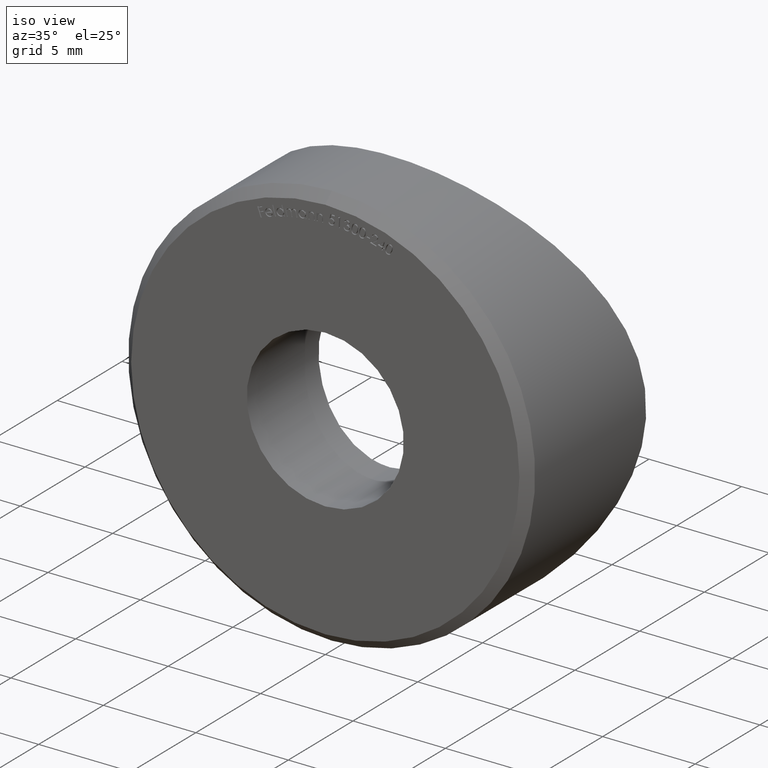
[diagram: clean part render]
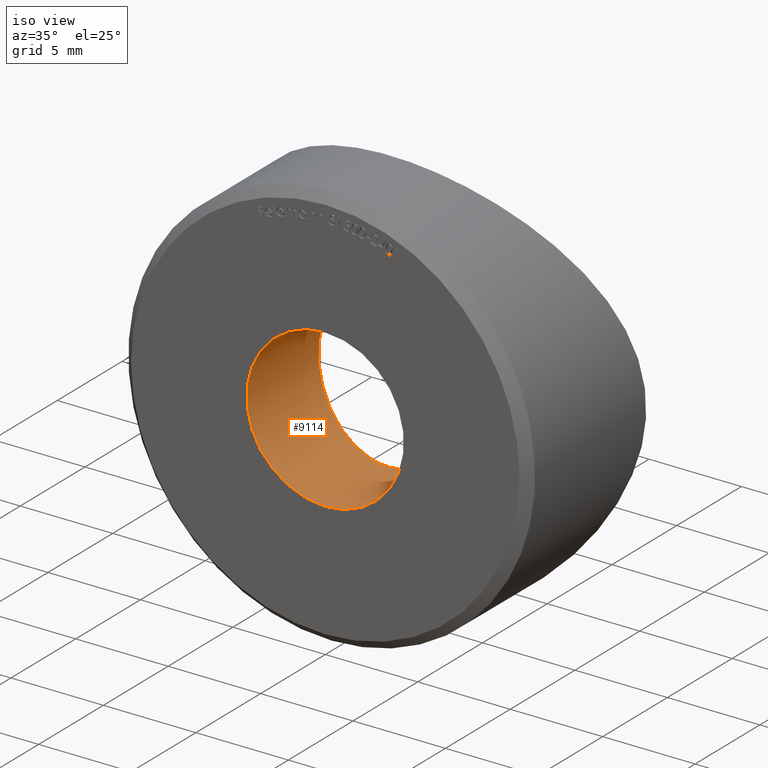
[diagram: same view with one face highlighted and labeled with its STEP entity id]
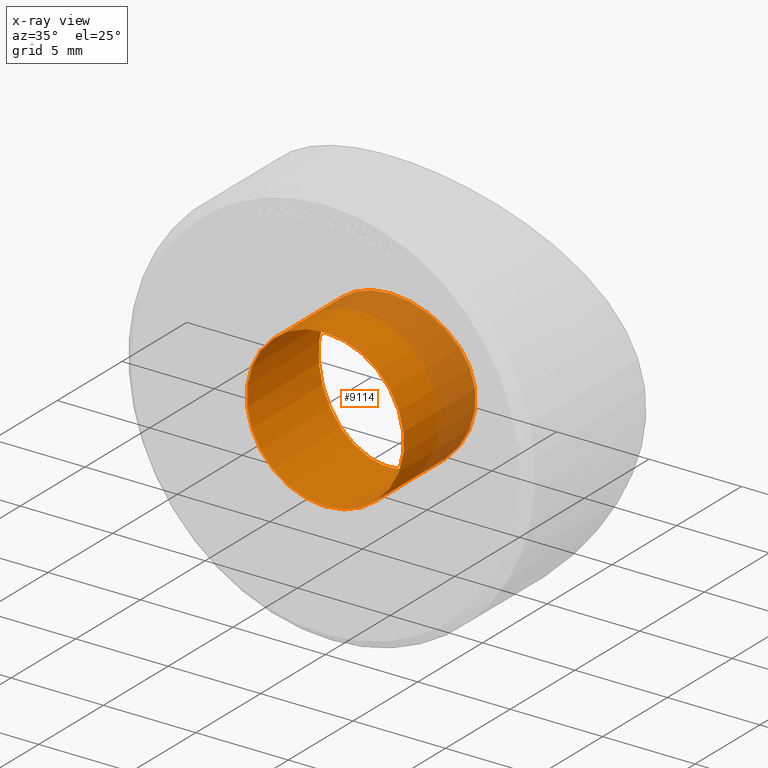
[diagram: x-ray of the same camera — body ghosted, the highlighted face saturated]
A machine part, iso view. The second image highlights one B-rep face of the part: STEP entity #9114.
The next image is the same camera in x-ray: the body ghosted, the highlighted face saturated — about 25% of this face is hidden behind the body in this view.
In plain terms, the highlighted cylindrical surface (bore or boss wall) has radius 4.25 mm, axis along (-0, -1, -0).
Its self-contained STEP definition (entity closure, byte-faithful):
#36 = CARTESIAN_POINT ( 'NONE',  ( -3.202099156066434471, 5.305868416663313880, -2.808045869680457773 ) ) ;
#96 = ORIENTED_EDGE ( 'NONE', *, *, #11983, .T. ) ;
#692 = CARTESIAN_POINT ( 'NONE',  ( 0.2819964863321830495, 5.000000000000001776, -4.250000000000001776 ) ) ;
#736 = CARTESIAN_POINT ( 'NONE',  ( 0.5590585511364187798, 5.007069249662907673, -4.222213537680882034 ) ) ;
#787 = CARTESIAN_POINT ( 'NONE',  ( 4.113363743329854216, 5.509684845895088223, 1.104640042574015935 ) ) ;
#805 = DIRECTION ( 'NONE',  ( 0.000000000000000000, -1.000000000000000000, 0.000000000000000000 ) ) ;
#830 = CARTESIAN_POINT ( 'NONE',  ( 3.376415596996001245, 5.340985582568876566, -2.596208720344776566 ) ) ;
#1052 = CARTESIAN_POINT ( 'NONE',  ( -2.132406354254060776, 5.133851616420283648, 3.686781688357382958 ) ) ;
#1093 = CARTESIAN_POINT ( 'NONE',  ( -4.249854645195545011, 5.544748222824101624, 0.2825546898945247021 ) ) ;
#1711 = CARTESIAN_POINT ( 'NONE',  ( 2.710505431213761085E-17, 5.000000000000000888, -4.250000000000000000 ) ) ;
#1776 = CARTESIAN_POINT ( 'NONE',  ( 0.000000000000000000, 5.000000000000000888, -4.250000000000000000 ) ) ;
#1797 = CARTESIAN_POINT ( 'NONE',  ( 3.686326990291119987, 5.407428811919006151, 2.133017918529832357 ) ) ;
#1843 = CARTESIAN_POINT ( 'NONE',  ( 4.030673782415022721, 5.488823833255817242, -1.375746474635703986 ) ) ;
#2081 = CARTESIAN_POINT ( 'NONE',  ( -4.250144221301368930, 5.544823701642275893, -0.2781649802007720162 ) ) ;
#2128 = CARTESIAN_POINT ( 'NONE',  ( -0.5598943242011187316, 5.007072636997521364, -4.222205587743669497 ) ) ;
#2156 = EDGE_LOOP ( 'NONE', ( #3646 ) ) ;
#2840 = CARTESIAN_POINT ( 'NONE',  ( 4.222551897898275008, 5.537558228515234937, -0.5576199131837077383 ) ) ;
#2933 = CARTESIAN_POINT ( 'NONE',  ( 2.136102750342999457, 5.134337833422313757, 3.684559433370321102 ) ) ;
#2975 = CARTESIAN_POINT ( 'NONE',  ( -1.883747374306436351, 5.103652316888144469, 3.819791992384478085 ) ) ;
#3102 = CARTESIAN_POINT ( 'NONE',  ( -1.371702607425717035, 5.053955916625676004, 4.032089655758223756 ) ) ;
#3127 = CARTESIAN_POINT ( 'NONE',  ( 0.000000000000000000, 0.000000000000000000, -4.250000000000000000 ) ) ;
#3646 = ORIENTED_EDGE ( 'NONE', *, *, #11384, .F. ) ;
#3756 = CARTESIAN_POINT ( 'NONE',  ( 4.250175355755280826, 5.544831816921088397, 0.2757379727460197993 ) ) ;
#3803 = CARTESIAN_POINT ( 'NONE',  ( 3.818350816521644653, 5.437973502901777501, -1.886585949457082245 ) ) ;
#3847 = CARTESIAN_POINT ( 'NONE',  ( 2.595389910111483900, 5.199467040311561483, 3.376812756513554614 ) ) ;
#3895 = CARTESIAN_POINT ( 'NONE',  ( 1.887181430685274108, 5.104032090535231880, 3.818137575137098061 ) ) ;
#3941 = CARTESIAN_POINT ( 'NONE',  ( 3.818794757457847577, 5.438071097091832229, 1.886082337270470699 ) ) ;
#4113 = CARTESIAN_POINT ( 'NONE',  ( -3.685052522565821054, 5.407141910777808924, 2.135217097874255288 ) ) ;
#4771 = CARTESIAN_POINT ( 'NONE',  ( 1.888501103381043489, 5.104171275860843515, -3.817535299979440744 ) ) ;
#4782 = FACE_OUTER_BOUND ( 'NONE', #12797, .T. ) ;
#4994 = CARTESIAN_POINT ( 'NONE',  ( -2.593735752357077651, 5.199194959748570710, 3.378172719713290473 ) ) ;
#5034 = CARTESIAN_POINT ( 'NONE',  ( -4.222815088679628737, 5.537628515245566874, -0.5548004495832316030 ) ) ;
#5564 = AXIS2_PLACEMENT_3D ( 'NONE', #9190, #6226, #9663 ) ;
#5906 = CARTESIAN_POINT ( 'NONE',  ( -0.2762136674625461086, 4.999970389481737776, 4.250117397005805486 ) ) ;
#5946 = CARTESIAN_POINT ( 'NONE',  ( -2.596800803165856042, 5.199660360310029539, -3.375912692660497871 ) ) ;
#6078 = CARTESIAN_POINT ( 'NONE',  ( -4.031977355670372631, 5.489143847044394064, -1.372104875753446862 ) ) ;
#6226 = DIRECTION ( 'NONE',  ( -0.000000000000000000, -1.000000000000000000, -0.000000000000000000 ) ) ;
#6828 = CARTESIAN_POINT ( 'NONE',  ( 4.222308652543642182, 5.537496505347000664, 0.5586596023103794773 ) ) ;
#6845 = CARTESIAN_POINT ( 'NONE',  ( 0.000000000000000000, 0.000000000000000000, 0.000000000000000000 ) ) ;
#6870 = CARTESIAN_POINT ( 'NONE',  ( 1.374256033223439033, 5.054157796278981429, 4.031258941093476267 ) ) ;
#6915 = CARTESIAN_POINT ( 'NONE',  ( 3.202292299650155272, 5.305882403607578901, 2.808077551392097249 ) ) ;
#7050 = CARTESIAN_POINT ( 'NONE',  ( -2.812333301363292737, 5.235171976391605142, -3.198334256070478165 ) ) ;
#7193 = B_SPLINE_CURVE_WITH_KNOTS ( 'NONE', 3,
 ( #1711, #692, #736, #12831, #7804, #4771, #8737, #12875, #11865, #8782, #830, #9808, #3803, #1843, #9939, #2840, #10847, #3756, #6828, #787, #7847, #3941, #1797, #8909, #6915, #9850, #3847, #2933, #3895, #6870, #8870, #7939, #10895, #5906, #12925, #9129, #3102, #2975, #1052, #4994, #11018, #12075, #8111, #4113, #8956, #8996, #12036, #12121, #1093, #2081, #5034, #13055, #6078, #11994, #8068, #7982, #36, #7050, #5946, #10105, #11108, #8153, #13010, #2128, #12968, #9985 ),
 .UNSPECIFIED., .T., .F.,
 ( 4, 2, 2, 2, 2, 2, 2, 2, 2, 2, 2, 2, 2, 2, 2, 2, 2, 2, 2, 2, 2, 2, 2, 2, 2, 2, 2, 2, 2, 2, 2, 2, 4 ),
 ( 0.000000000000000000, 0.0008337316715634521909, 0.001667463343126904382, 0.002501195014690356030, 0.003334926686253807896, 0.004168658357817258894, 0.005002390029380710326, 0.005836121700944162626, 0.006669853372507613190, 0.007503585044071064622, 0.008337316715634516054, 0.009171048387197969221, 0.01000478005876142065, 0.01083851173032487382, 0.01167224340188832699, 0.01250597507345177842, 0.01333970674501522985, 0.01417343841657868128, 0.01500717008814213271, 0.01584090175970558415, 0.01667463343126903558, 0.01750836510283248701, 0.01834209677439594191, 0.01917582844595939334, 0.02000956011752284477, 0.02084329178908629968, 0.02167702346064975111, 0.02251075513221320254, 0.02334448680377665397, 0.02417821847534010887, 0.02501195014690356030, 0.02584568181846701174, 0.02667941349003046317 ),
 .UNSPECIFIED. ) ;
#7292 = CIRCLE ( 'NONE', #9696, 4.250000000000000000 ) ;
#7303 = CYLINDRICAL_SURFACE ( 'NONE', #5564, 4.250000000000000000 ) ;
#7804 = CARTESIAN_POINT ( 'NONE',  ( 1.374338991408923460, 5.054155025353187725, -4.031278273792771927 ) ) ;
#7847 = CARTESIAN_POINT ( 'NONE',  ( 4.032773300443170506, 5.489335489628399678, 1.370123895778730505 ) ) ;
#7866 = DIRECTION ( 'NONE',  ( 0.000000000000000000, 0.000000000000000000, -1.000000000000000000 ) ) ;
#7939 = CARTESIAN_POINT ( 'NONE',  ( 0.5619438384984910551, 5.007143928881897743, 4.221922281909276542 ) ) ;
#7982 = CARTESIAN_POINT ( 'NONE',  ( -3.379281232852199945, 5.341576909470330925, -2.592423147604817402 ) ) ;
#8068 = CARTESIAN_POINT ( 'NONE',  ( -3.688936139207575238, 5.408001193666002848, -2.128837614237557574 ) ) ;
#8111 = CARTESIAN_POINT ( 'NONE',  ( -3.377744290594377752, 5.341273890947086933, 2.594148734456136918 ) ) ;
#8153 = CARTESIAN_POINT ( 'NONE',  ( -1.378446531667037345, 5.054511372814645576, -4.029785414792545595 ) ) ;
#8737 = CARTESIAN_POINT ( 'NONE',  ( 2.132174520861052525, 5.133823500306836429, -3.686905137098007934 ) ) ;
#8782 = CARTESIAN_POINT ( 'NONE',  ( 3.200918750118391110, 5.305637258113845789, -2.809410282112447366 ) ) ;
#8870 = CARTESIAN_POINT ( 'NONE',  ( 1.109289655377347916, 5.034321067215300261, 4.112163067362633484 ) ) ;
#8909 = CARTESIAN_POINT ( 'NONE',  ( 3.379275109549660705, 5.341588395958917879, 2.592155831368216035 ) ) ;
#8956 = CARTESIAN_POINT ( 'NONE',  ( -3.816104194528845639, 5.437441141176917903, 1.891624656264253357 ) ) ;
#8996 = CARTESIAN_POINT ( 'NONE',  ( -4.031286382124425138, 5.488964897564369672, 1.374636377005089782 ) ) ;
#9114 = ADVANCED_FACE ( 'NONE', ( #4782, #11662 ), #7303, .F. ) ;
#9129 = CARTESIAN_POINT ( 'NONE',  ( -1.105859729299965677, 5.034053223401452115, 4.113259464226636020 ) ) ;
#9190 = CARTESIAN_POINT ( 'NONE',  ( 0.000000000000000000, 9.913412347336441499, 0.000000000000000000 ) ) ;
#9663 = DIRECTION ( 'NONE',  ( 0.000000000000000000, 0.000000000000000000, -1.000000000000000000 ) ) ;
#9696 = AXIS2_PLACEMENT_3D ( 'NONE', #6845, #805, #7866 ) ;
#9808 = CARTESIAN_POINT ( 'NONE',  ( 3.687095519701667268, 5.407583330082452733, -2.132090202554298486 ) ) ;
#9850 = CARTESIAN_POINT ( 'NONE',  ( 2.808691886269189641, 5.234532720875240130, 3.201753487549679367 ) ) ;
#9939 = CARTESIAN_POINT ( 'NONE',  ( 4.112911742142729921, 5.509569831859697508, -1.106725575455720589 ) ) ;
#9985 = CARTESIAN_POINT ( 'NONE',  ( 2.710505431213761085E-17, 5.000000000000000888, -4.250000000000000000 ) ) ;
#10105 = CARTESIAN_POINT ( 'NONE',  ( -2.133737060584067535, 5.134009132431184064, -3.686099167965933177 ) ) ;
#10847 = CARTESIAN_POINT ( 'NONE',  ( 4.249822942048251839, 5.544739959313781164, -0.2811173163004300757 ) ) ;
#10895 = CARTESIAN_POINT ( 'NONE',  ( 0.2798146215759761413, 5.000029802905063825, 4.249881840237069497 ) ) ;
#11018 = CARTESIAN_POINT ( 'NONE',  ( -2.806982465729827236, 5.234252610183276033, 3.203145551355376153 ) ) ;
#11108 = CARTESIAN_POINT ( 'NONE',  ( -1.890039068118174903, 5.104364586927003344, -3.816678877103310441 ) ) ;
#11178 = VERTEX_POINT ( 'NONE', #1776 ) ;
#11384 = EDGE_CURVE ( 'NONE', #11178, #11178, #7193, .T. ) ;
#11662 = FACE_OUTER_BOUND ( 'NONE', #2156, .T. ) ;
#11865 = CARTESIAN_POINT ( 'NONE',  ( 2.810697415750018635, 5.234892434381701598, -3.199788589140659223 ) ) ;
#11983 = EDGE_CURVE ( 'NONE', #12918, #12918, #7292, .T. ) ;
#11994 = CARTESIAN_POINT ( 'NONE',  ( -3.819312938941099578, 5.438196195153287782, -1.884771036795218180 ) ) ;
#12036 = CARTESIAN_POINT ( 'NONE',  ( -4.112614128780599287, 5.509496015440820571, 1.107185510212760127 ) ) ;
#12075 = CARTESIAN_POINT ( 'NONE',  ( -3.199158387014465088, 5.305284907260841898, 2.811525849228039498 ) ) ;
#12121 = CARTESIAN_POINT ( 'NONE',  ( -4.221643304922715778, 5.537324154276787702, 0.5631896059695389312 ) ) ;
#12797 = EDGE_LOOP ( 'NONE', ( #96 ) ) ;
#12831 = CARTESIAN_POINT ( 'NONE',  ( 1.103784810458176668, 5.033980202900227852, -4.113549891951751469 ) ) ;
#12875 = CARTESIAN_POINT ( 'NONE',  ( 2.593298268890256608, 5.199128279730402369, -3.378496968466825567 ) ) ;
#12918 = VERTEX_POINT ( 'NONE', #3127 ) ;
#12925 = CARTESIAN_POINT ( 'NONE',  ( -0.5533878095327753321, 5.006818778314382712, 4.223220464668863805 ) ) ;
#12968 = CARTESIAN_POINT ( 'NONE',  ( -0.2819964863321829940, 5.000000000000000888, -4.249999999999999112 ) ) ;
#13010 = CARTESIAN_POINT ( 'NONE',  ( -1.107615902370448158, 5.034207695666956361, -4.112625522979524995 ) ) ;
#13055 = CARTESIAN_POINT ( 'NONE',  ( -4.114387857407335147, 5.509943595916539039, -1.100810324650509875 ) ) ;